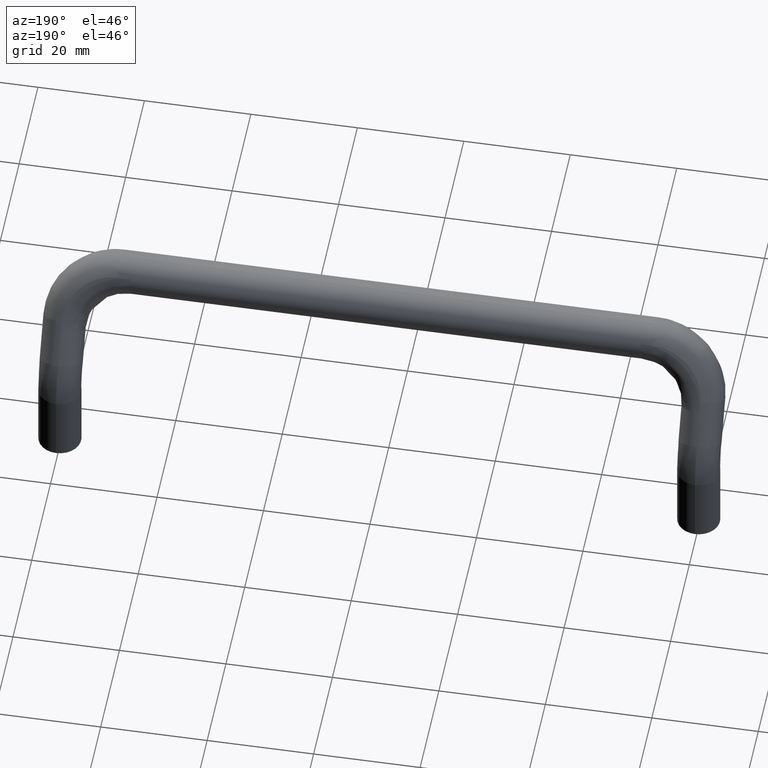
[diagram: clean part render]
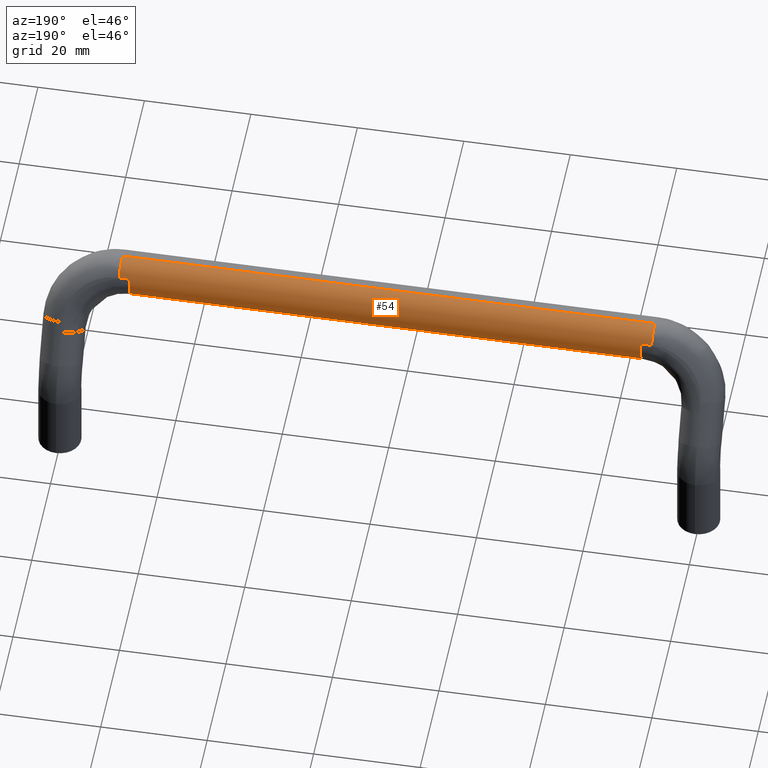
[diagram: same view with one face highlighted and labeled with its STEP entity id]
A machine part, auxiliary view. The second image highlights one B-rep face of the part: STEP entity #54.
In plain terms, the highlighted cylindrical surface (edge-blend (fillet) strip) has radius 4 mm, axis along (1, -0, -0).
Its self-contained STEP definition (entity closure, byte-faithful):
#54=ADVANCED_FACE('',(#213),#212,.T.);
#212=CYLINDRICAL_SURFACE('',#593,4.00000000000E+00);
#213=FACE_OUTER_BOUND('',#594,.T.);
#590=CARTESIAN_POINT('',(0.00000000000E+00,4.27405506820E-11,3.99999999992E+00));
#591=DIRECTION('',(1.00000000000E+00,-0.00000000000E+00,-0.00000000000E+00));
#592=DIRECTION('',(-0.00000000000E+00,-0.00000000000E+00,-1.00000000000E+00));
#593=AXIS2_PLACEMENT_3D('',#590,#591,#592);
#594=EDGE_LOOP('',(#754,#755,#756,#757,#758,#759,#760,#761));
#754=ORIENTED_EDGE('',*,*,#848,.T.);
#755=ORIENTED_EDGE('',*,*,#845,.F.);
#756=ORIENTED_EDGE('',*,*,#879,.T.);
#757=ORIENTED_EDGE('',*,*,#892,.F.);
#758=ORIENTED_EDGE('',*,*,#856,.F.);
#759=ORIENTED_EDGE('',*,*,#868,.T.);
#760=ORIENTED_EDGE('',*,*,#862,.F.);
#761=ORIENTED_EDGE('',*,*,#893,.T.);
#845=EDGE_CURVE('',#943,#950,#951,.T.);
#848=EDGE_CURVE('',#970,#950,#971,.T.);
#856=EDGE_CURVE('',#1019,#1026,#1027,.T.);
#862=EDGE_CURVE('',#1061,#1068,#1069,.T.);
#868=EDGE_CURVE('',#1019,#1068,#1108,.T.);
#879=EDGE_CURVE('',#943,#1175,#1182,.T.);
#892=EDGE_CURVE('',#1026,#1175,#1268,.T.);
#893=EDGE_CURVE('',#1061,#970,#1274,.T.);
#943=VERTEX_POINT('',#1427);
#950=VERTEX_POINT('',#1432);
#951=LINE('',#1433,#1434);
#970=VERTEX_POINT('',#1444);
#971=CIRCLE('',#1448,4.00000000000E+00);
#1019=VERTEX_POINT('',#1479);
#1026=VERTEX_POINT('',#1484);
#1027=CIRCLE('',#1488,4.00000000000E+00);
#1061=VERTEX_POINT('',#1509);
#1068=VERTEX_POINT('',#1514);
#1069=CIRCLE('',#1518,4.00000000000E+00);
#1108=LINE('',#1541,#1542);
#1175=VERTEX_POINT('',#1585);
#1182=CIRCLE('',#1593,4.00000000000E+00);
#1268=(BOUNDED_CURVE() B_SPLINE_CURVE(1,(#1646,#1647),.UNSPECIFIED.,.F.,.F.) B_SPLINE_CURVE_WITH_KNOTS((2,2),(1.00000000000E-01,9.00000000260E-01),.UNSPECIFIED.) CURVE() GEOMETRIC_REPRESENTATION_ITEM() RATIONAL_B_SPLINE_CURVE((1.00000000000E+00,1.00000000000E+00)) REPRESENTATION_ITEM('') );
#1274=(BOUNDED_CURVE() B_SPLINE_CURVE(1,(#1648,#1649),.UNSPECIFIED.,.F.,.F.) B_SPLINE_CURVE_WITH_KNOTS((2,2),(8.33333333332E-02,9.16666666667E-01),.UNSPECIFIED.) CURVE() GEOMETRIC_REPRESENTATION_ITEM() RATIONAL_B_SPLINE_CURVE((7.50000000000E-01,7.50000000000E-01)) REPRESENTATION_ITEM('') );
#1427=CARTESIAN_POINT('',(4.80000000001E+01,3.56459052426E+00,5.81485382179E+00));
#1432=CARTESIAN_POINT('',(5.00000000001E+01,3.56459052417E+00,5.81485382196E+00));
#1433=CARTESIAN_POINT('',(4.80000000001E+01,3.56459052426E+00,5.81485382179E+00));
#1434=VECTOR('',#1435,2.00000000000E+00);
#1435=DIRECTION('',(1.00000000000E+00,-4.49997816787E-11,8.50000070329E-11));
#1444=CARTESIAN_POINT('',(5.00000000001E+01,1.16973811745E-04,7.99999999837E+00));
#1445=CARTESIAN_POINT('',(5.00000000001E+01,-4.33537754307E-11,4.00000000008E+00));
#1446=DIRECTION('',(-1.00000000000E+00,1.57413412893E-15,-3.55271585154E-15));
#1447=DIRECTION('',(3.55271367880E-15,-1.38027852902E-06,-9.99999999999E-01));
#1448=AXIS2_PLACEMENT_3D('',#1445,#1446,#1447);
#1479=CARTESIAN_POINT('',(-4.80000000001E+01,3.56459052426E+00,5.81485382179E+00));
#1484=CARTESIAN_POINT('',(-4.80000000001E+01,-5.52098460034E-06,-7.61902096730E-11));
#1485=CARTESIAN_POINT('',(-4.80000000001E+01,4.27399001607E-11,3.99999999992E+00));
#1486=DIRECTION('',(-1.00000000000E+00,3.14826953025E-15,-6.18357886458E-15));
#1487=DIRECTION('',(-4.55310903712E-31,8.91147631052E-01,4.53713455466E-01));
#1488=AXIS2_PLACEMENT_3D('',#1485,#1486,#1487);
#1509=CARTESIAN_POINT('',(-5.00000000001E+01,1.16973878095E-04,7.99999999837E+00));
#1514=CARTESIAN_POINT('',(-5.00000000001E+01,3.56459052417E+00,5.81485382196E+00));
#1515=CARTESIAN_POINT('',(-5.00000000001E+01,-4.33537754307E-11,4.00000000008E+00));
#1516=DIRECTION('',(-1.00000000000E+00,-1.57413476514E-15,3.09178943229E-15));
#1517=DIRECTION('',(-4.24870678162E-31,-8.91147631050E-01,-4.53713455470E-01));
#1518=AXIS2_PLACEMENT_3D('',#1515,#1516,#1517);
#1541=CARTESIAN_POINT('',(-4.80000000001E+01,3.56459052426E+00,5.81485382179E+00));
#1542=VECTOR('',#1543,2.00000000000E+00);
#1543=DIRECTION('',(-1.00000000000E+00,-4.49997816787E-11,8.50000070329E-11));
#1585=CARTESIAN_POINT('',(4.80000000001E+01,-5.52098460072E-06,-7.61897973083E-11));
#1590=CARTESIAN_POINT('',(4.80000000001E+01,4.27399001607E-11,3.99999999992E+00));
#1591=DIRECTION('',(-1.00000000000E+00,-3.14829451637E-15,5.32916258750E-15));
#1592=DIRECTION('',(5.32907051820E-15,2.92434610622E-05,9.99999999572E-01));
#1593=AXIS2_PLACEMENT_3D('',#1590,#1591,#1592);
#1646=CARTESIAN_POINT('',(-4.80000000001E+01,4.27405506820E-11,-8.00000066192E-11));
#1647=CARTESIAN_POINT('',(4.80000000313E+01,4.27405506820E-11,-8.00000066192E-11));
#1648=CARTESIAN_POINT('',(-5.00000000001E+01,4.27403297939E-11,7.99999999992E+00));
#1649=CARTESIAN_POINT('',(5.00000000001E+01,4.27403297939E-11,7.99999999992E+00));